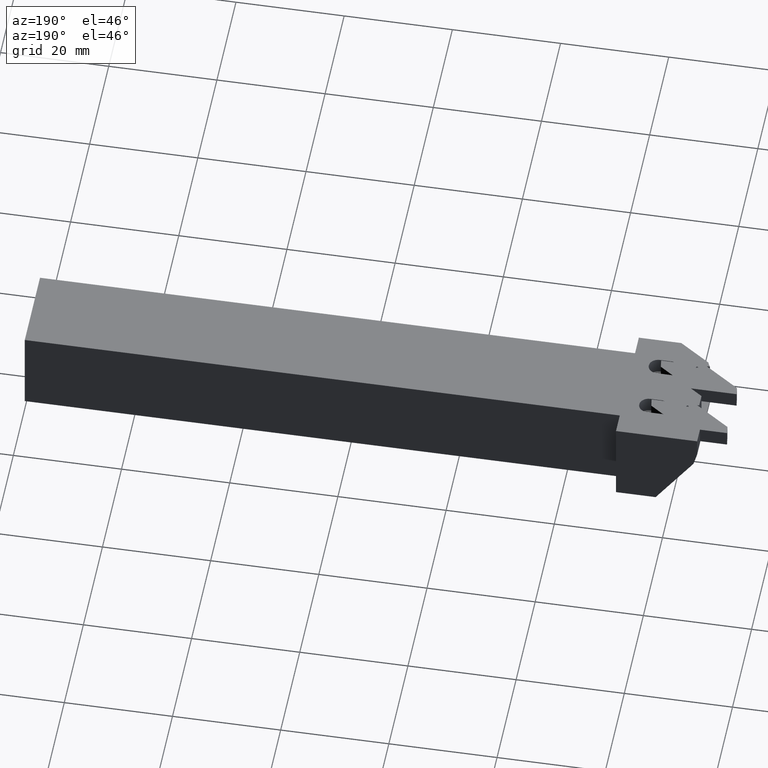
[diagram: clean part render]
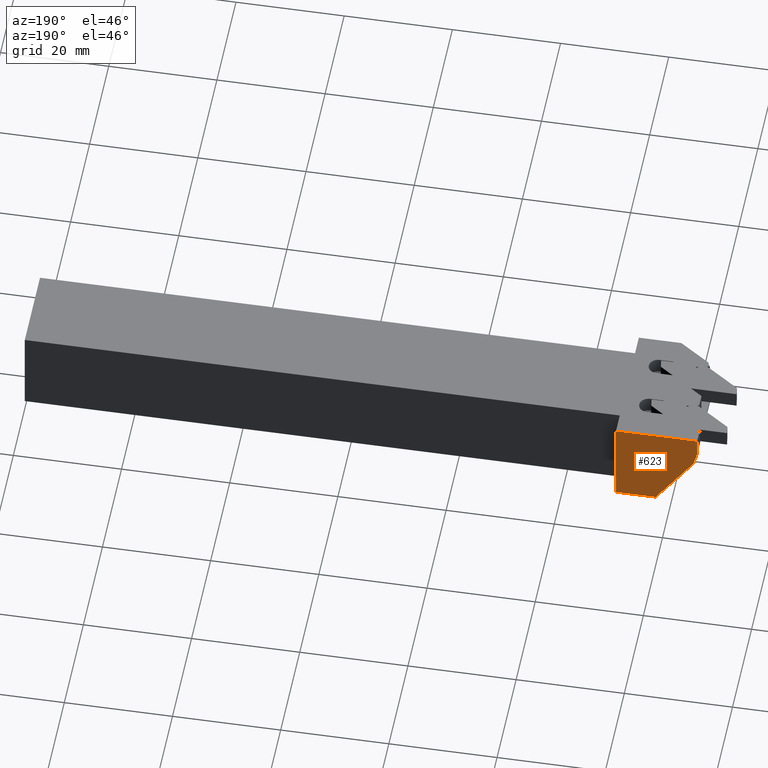
[diagram: same view with one face highlighted and labeled with its STEP entity id]
A machine part, auxiliary view. The second image highlights one B-rep face of the part: STEP entity #623.
In plain terms, the highlighted planar face has unit normal (-0, 1, 0).
Its self-contained STEP definition (entity closure, byte-faithful):
#98 = EDGE_CURVE ( 'NONE', #2925, #1683, #1750, .T. ) ;
#114 = EDGE_LOOP ( 'NONE', ( #2069, #1400, #1505, #2598, #1085, #764 ) ) ;
#175 = EDGE_CURVE ( 'NONE', #2112, #465, #2324, .T. ) ;
#178 = DIRECTION ( 'NONE',  ( -2.312964634635743400E-016, 1.000000000000000000, 0.0000000000000000000 ) ) ;
#187 = EDGE_CURVE ( 'NONE', #2112, #2300, #1545, .T. ) ;
#304 = VECTOR ( 'NONE', #2922, 1000.000000000000000 ) ;
#455 = EDGE_CURVE ( 'NONE', #2300, #2925, #3242, .T. ) ;
#460 = VECTOR ( 'NONE', #2231, 1000.000000000000000 ) ;
#465 = VERTEX_POINT ( 'NONE', #1018 ) ;
#486 = DIRECTION ( 'NONE',  ( -1.000000000000000000, -2.312964634635743000E-016, -0.0000000000000000000 ) ) ;
#559 = LINE ( 'NONE', #1088, #304 ) ;
#623 = ADVANCED_FACE ( 'NONE', ( #2031 ), #1160, .T. ) ;
#638 = EDGE_CURVE ( 'NONE', #1683, #686, #2380, .T. ) ;
#686 = VERTEX_POINT ( 'NONE', #1047 ) ;
#764 = ORIENTED_EDGE ( 'NONE', *, *, #187, .T. ) ;
#791 = CARTESIAN_POINT ( 'NONE',  ( -125.0000000000000000, 11.99999999999998200, -3.499999999999999600 ) ) ;
#1018 = CARTESIAN_POINT ( 'NONE',  ( -110.0000000000000000, 11.99999999999998800, 0.0000000000000000000 ) ) ;
#1027 = CARTESIAN_POINT ( 'NONE',  ( -125.0000000000000000, 11.99999999999998400, -16.00000000000000000 ) ) ;
#1047 = CARTESIAN_POINT ( 'NONE',  ( -125.0000000000000000, 11.99999999999998400, 0.0000000000000000000 ) ) ;
#1085 = ORIENTED_EDGE ( 'NONE', *, *, #175, .F. ) ;
#1088 = CARTESIAN_POINT ( 'NONE',  ( -125.0000000000000000, 11.99999999999998400, 0.0000000000000000000 ) ) ;
#1160 = PLANE ( 'NONE',  #1793 ) ;
#1216 = VECTOR ( 'NONE', #3032, 999.9999999999998900 ) ;
#1400 = ORIENTED_EDGE ( 'NONE', *, *, #98, .T. ) ;
#1505 = ORIENTED_EDGE ( 'NONE', *, *, #638, .T. ) ;
#1542 = CARTESIAN_POINT ( 'NONE',  ( -125.0000000000000000, 11.99999999999998400, -16.00000000000000000 ) ) ;
#1545 = LINE ( 'NONE', #1027, #3127 ) ;
#1683 = VERTEX_POINT ( 'NONE', #791 ) ;
#1711 = CARTESIAN_POINT ( 'NONE',  ( -124.3301270189222000, 11.99999999999998200, -6.000000000000000000 ) ) ;
#1750 = LINE ( 'NONE', #2252, #1216 ) ;
#1793 = AXIS2_PLACEMENT_3D ( 'NONE', #2071, #178, #1800 ) ;
#1800 = DIRECTION ( 'NONE',  ( -1.000000000000000000, -2.312964634635743400E-016, 0.0000000000000000000 ) ) ;
#1851 = CARTESIAN_POINT ( 'NONE',  ( -119.8520453790324300, 11.99999999999998600, -12.39536336803698900 ) ) ;
#2031 = FACE_OUTER_BOUND ( 'NONE', #114, .T. ) ;
#2069 = ORIENTED_EDGE ( 'NONE', *, *, #455, .T. ) ;
#2071 = CARTESIAN_POINT ( 'NONE',  ( -125.0000000000000000, 11.99999999999998400, -16.00000000000000000 ) ) ;
#2112 = VERTEX_POINT ( 'NONE', #3436 ) ;
#2117 = DIRECTION ( 'NONE',  ( -0.5735764363510477100, -1.326662012540372500E-016, 0.8191520442889906900 ) ) ;
#2135 = EDGE_CURVE ( 'NONE', #465, #686, #559, .T. ) ;
#2231 = DIRECTION ( 'NONE',  ( 0.0000000000000000000, 0.0000000000000000000, 1.000000000000000000 ) ) ;
#2252 = CARTESIAN_POINT ( 'NONE',  ( -121.8750000000000100, 11.99999999999998400, -15.16265877365274800 ) ) ;
#2274 = CARTESIAN_POINT ( 'NONE',  ( -117.3280516368250700, 11.99999999999998200, -16.00000000000000000 ) ) ;
#2300 = VERTEX_POINT ( 'NONE', #2274 ) ;
#2324 = LINE ( 'NONE', #2490, #2782 ) ;
#2380 = LINE ( 'NONE', #1542, #460 ) ;
#2405 = VECTOR ( 'NONE', #2117, 1000.000000000000100 ) ;
#2490 = CARTESIAN_POINT ( 'NONE',  ( -110.0000000000000000, 11.99999999999998800, -16.00000000000000000 ) ) ;
#2598 = ORIENTED_EDGE ( 'NONE', *, *, #2135, .F. ) ;
#2782 = VECTOR ( 'NONE', #3018, 1000.000000000000000 ) ;
#2922 = DIRECTION ( 'NONE',  ( -1.000000000000000000, -2.312964634635743000E-016, -0.0000000000000000000 ) ) ;
#2925 = VERTEX_POINT ( 'NONE', #1711 ) ;
#3018 = DIRECTION ( 'NONE',  ( 0.0000000000000000000, 0.0000000000000000000, 1.000000000000000000 ) ) ;
#3032 = DIRECTION ( 'NONE',  ( -0.2588190451025198500, -5.986392980923216600E-017, 0.9659258262890686500 ) ) ;
#3127 = VECTOR ( 'NONE', #486, 1000.000000000000000 ) ;
#3242 = LINE ( 'NONE', #1851, #2405 ) ;
#3436 = CARTESIAN_POINT ( 'NONE',  ( -110.0000000000000000, 11.99999999999998800, -16.00000000000000000 ) ) ;